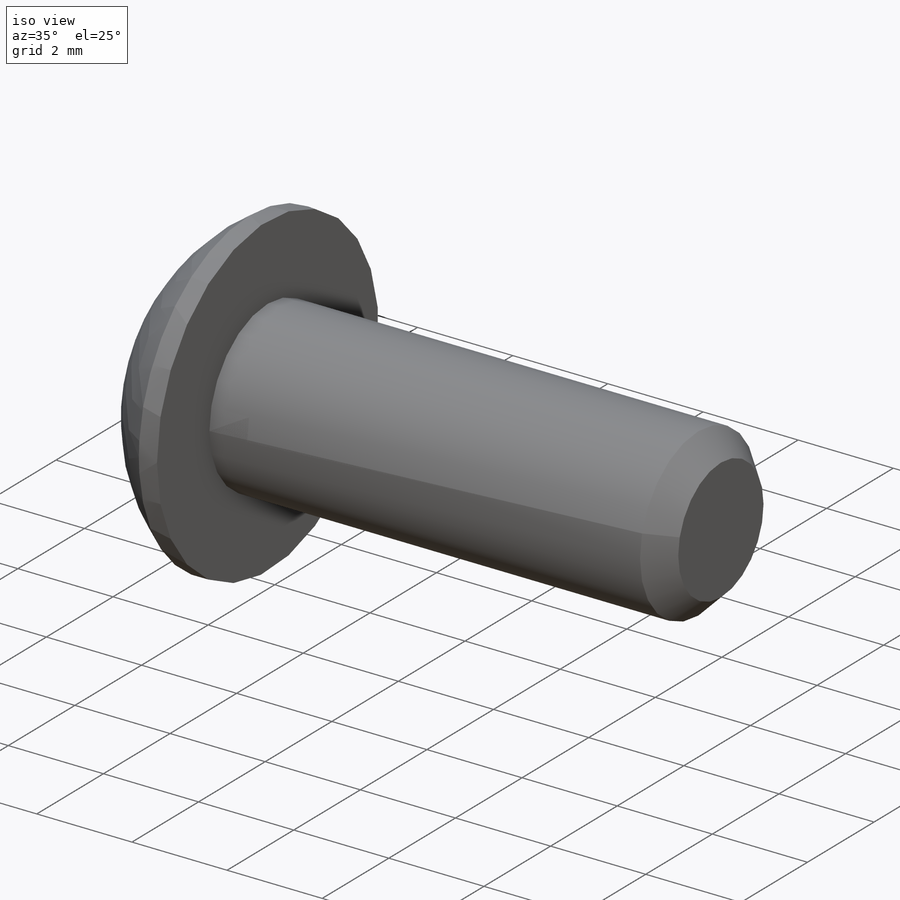
[diagram: iso view]
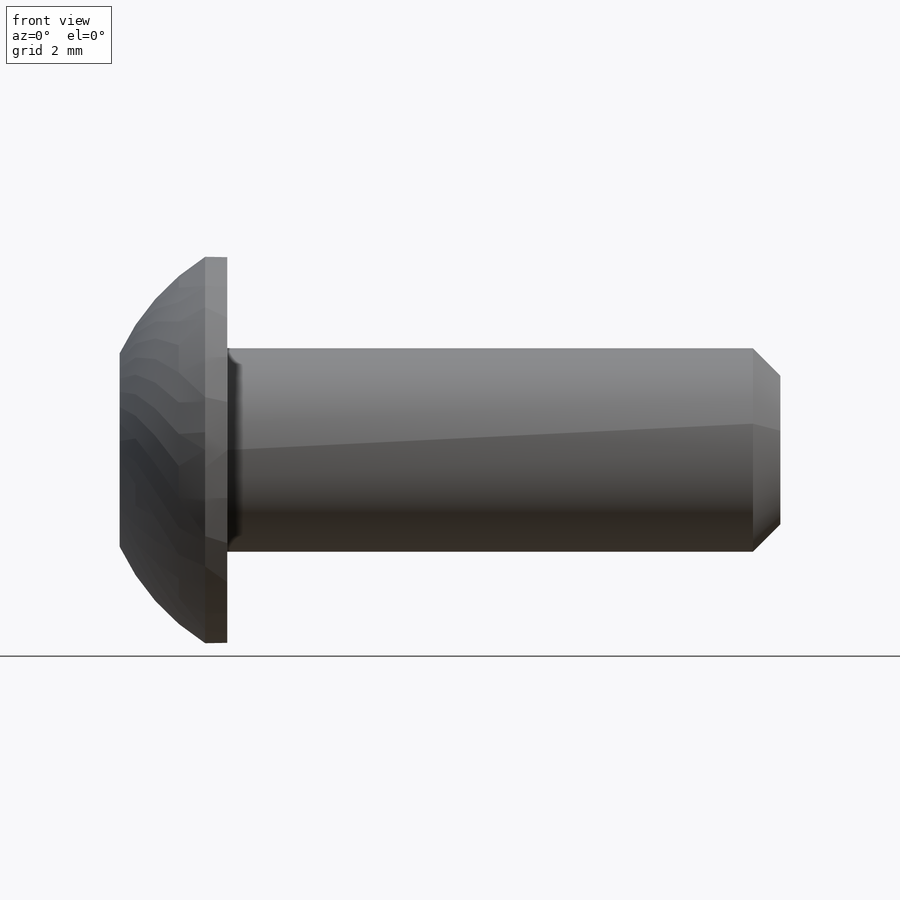
[diagram: front view]
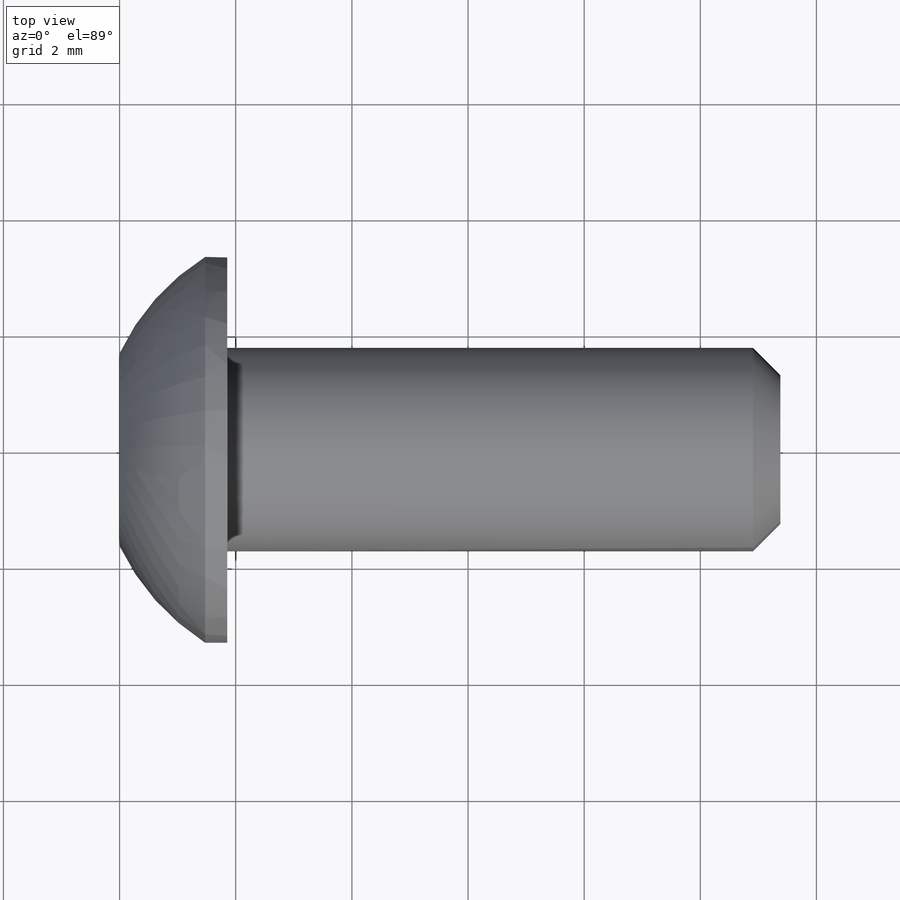
[diagram: top view]
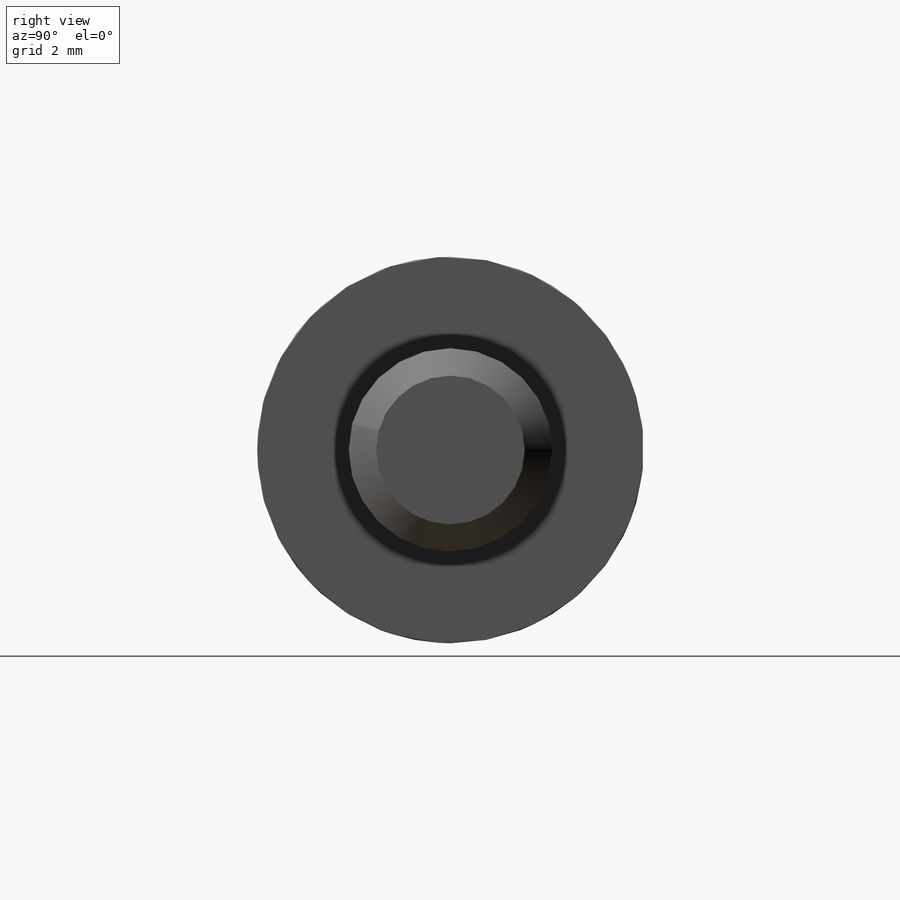
[diagram: right view]
SOLIDWORKS PART (.sldprt)
format: sldprt  version: not decoded by parser v0  size: 324,096 bytes
history: native  units: mm
features: sketch x5, pattern_linear x4, plane x3, cut_revolve x2, cut_extrude x2, material x1, revolve x1, thread x1, pattern_circular x1 (+11 scaffold rows collapsed; 1 parser-record rows omitted)
feature tree (32):
  parser-record x1  (decoder bookkeeping rows leaked as tree rows — omitted from the tree; the rows remain in map.json)
  scaffold x11  (default folders/planes/origin — collapsed)
  material  "Alloy Steel"
  plane  "Plane1"
  plane  "Plane2"
  plane  "Plane3"
  sketch  "BodySke"  dims[c1.D2=~9.38469mm c1.Diameter=3.5052mm c1.Length=9.525mm c1.Head_dia=6.6548mm c1.D1=3.3274mm c1.Head_ht=1.8542mm c1.Head_side_ht=0.381mm c1.Minor_dia=~2.56032mm c2.D2=~3.81635mm c2.Body_ch_ang=45.0deg c2.Advance=~0.79248mm c2.Thread_nom=9.525mm c2.Thread_lim=36.5125mm]
  revolve  "BaseBody"  [1 undecoded]
  thread  "ThreadCosmetic"  Diameter=8.73252mm Thread_length=8.73252mm Thread_minor=2.56032mm  [1 undecoded]
  sketch  "Sketch2"  dims[c1.D1=7.9375mm c1.D2=25.4mm c2.D2=60.0deg c2.Wall_thickness=12.827mm c2.PreBroach_depth=1.1176mm c2.PreBroach_dia=1.9812mm]
  cut_revolve  "PreBroach"  Angle=360deg
  sketch  "Sketch3"  dims[c1.D1=9.525mm c1.D2=9.525mm c1.Hex_size=19.05mm c1.D4=~14.664697mm c2.D4=120.0deg c2.Hex_size=15.875mm c2.D1=7.9375mm c2.D2=7.9375mm c2.D3=~13.528644mm c3.D3=120.0deg c3.D4=15.875mm c3.Hex_size=1.9812mm c3.D1=7.9375mm c3.D2=7.9375mm c4.D3=1.9812mm c4.D1=0.9906mm c4.D2=0.9906mm]
  cut_extrude  "Hex"  Depth=1.1176mm Key_eng=1.1176mm
  sketch  "Sketch4"  dims[c1.Spline_n_dim=2.0828mm c1.Spline_m_dim=2.4892mm c1.D1=5.8547mm c2.D1=30.0deg c2.D2=5.8547mm c3.D2=60.0deg c3.Spline_p_dim=2.794mm c4.Spline_p_dim=0.5588mm c4.D3=0.2794mm]
  cut_extrude  "Spline"  Depth=1.1176mm Key_eng=1.1176mm
  pattern_circular  "CirPattern1"  Count=6 Angle=60deg Num_teeth=6
  sketch  "ThdSchSke"  dims[c1.Thread_minor=~1.03886mm c1.Diameter=~1.413535mm c1.Start=~0.988134mm c1.D4=~4.446753mm c1.Vee=60.0deg c2.Thread_minor=~1.03886mm c2.Start=~2.540025mm c2.D1=~0.108159mm c2.D2=~0.108159mm c3.D1=~0.216319mm c3.SideAngle=55.0deg c3.D2=~0.216319mm c3.VeeAngle=70.0deg c3.Thread_minor=~2.56032mm c3.Overcut=4.3815mm c3.Diameter=3.5052mm c3.D6=~8.326268mm c4.D1=~8.326268mm c5.D1=90.0deg c5.Start=63.5mm c6.Start=140.4874mm c7.Start=8.3947mm c8.Start=8.3947mm c9.Start=~2.64668mm]
  cut_revolve  "ThreadSchematic"  Angle=360deg
  pattern_linear  "ThdSchPat"  Count1=12 Count2=1 Spacing1=0.72771mm Spacing2=50mm Num_threads=12 Advance=0.72771mm
  pattern_linear  "ConfigurationName"  Spacing1=1 CopiedFlag=1  [1 undecoded]
  pattern_linear  "PartNumberID"  [2 undecoded]
  pattern_linear  "ConfigurationName"  Spacing1=0 CopiedFlag=0  [1 undecoded]
decode coverage: 14 of 16 modeling features carry decoded parameters
note: ~ marks probable driven/reference dimensions
note: 6 parameter values undecoded
note: suppression state not decoded; provenance and decode notes live in map.json
